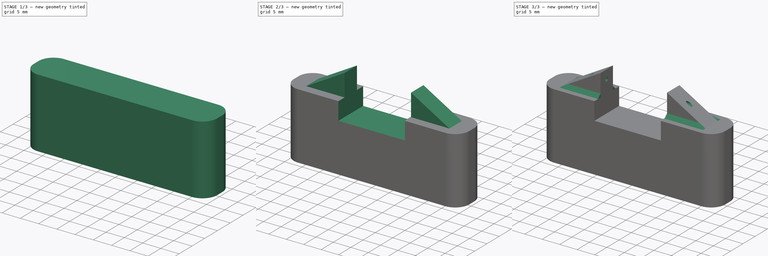
[diagram: build sequence overview — one tinted view per stage of 3, left to right]
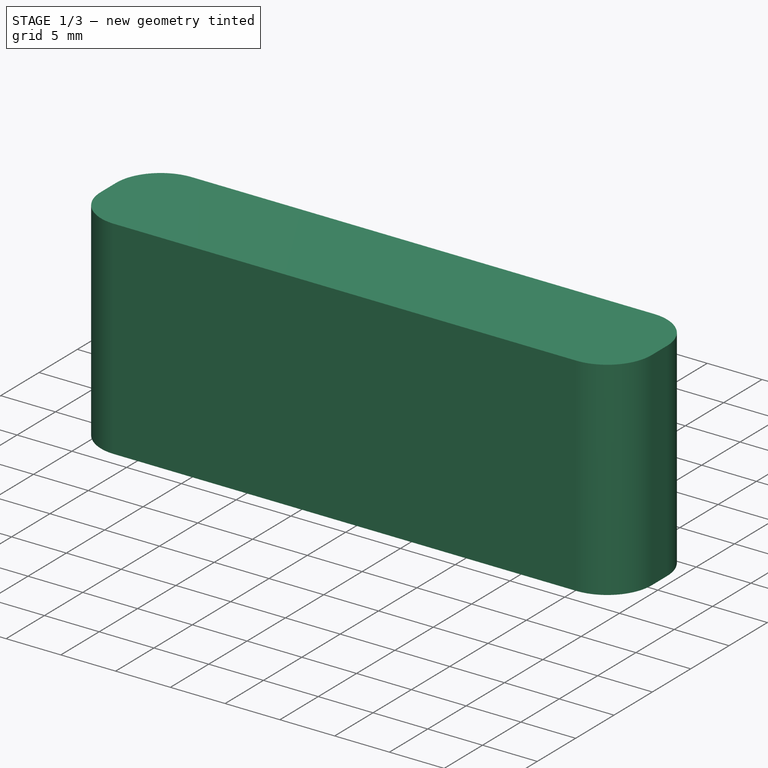
[diagram: stage 1 of 3 — iso view after this stage's code; geometry added in this stage tinted green]
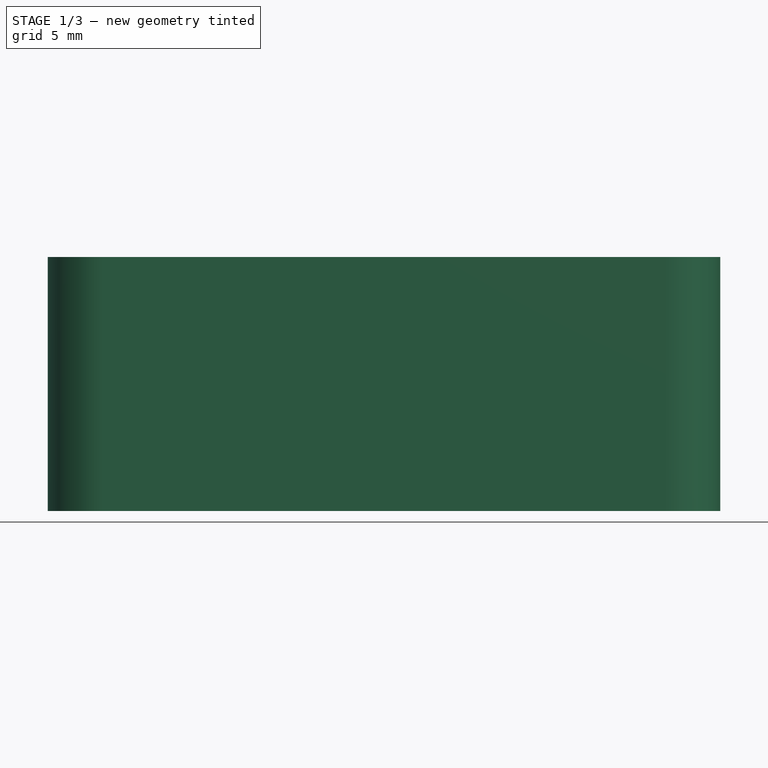
[diagram: stage 1 of 3 — front view after this stage's code; geometry added in this stage tinted green]
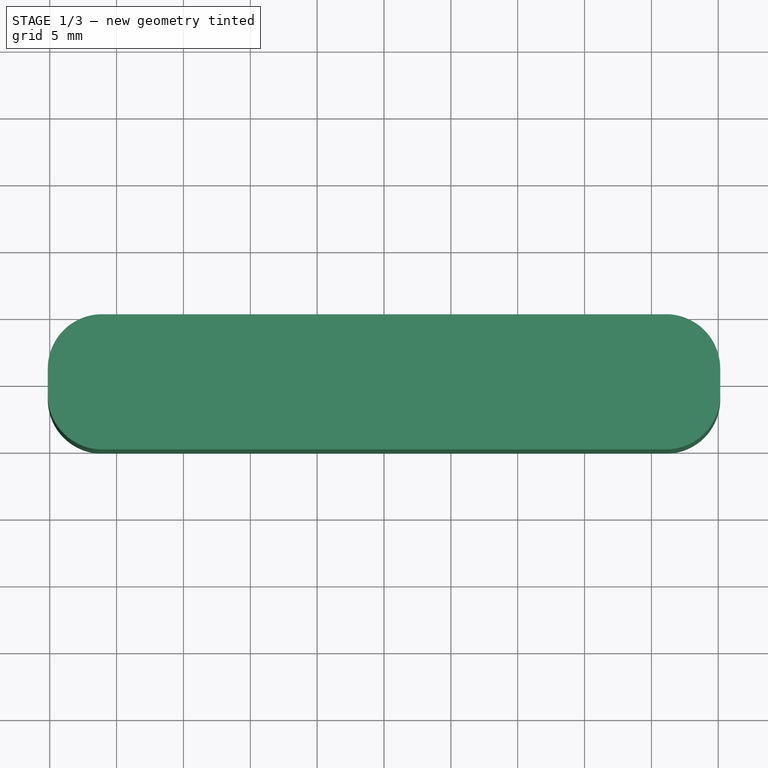
[diagram: stage 1 of 3 — top view after this stage's code; geometry added in this stage tinted green]
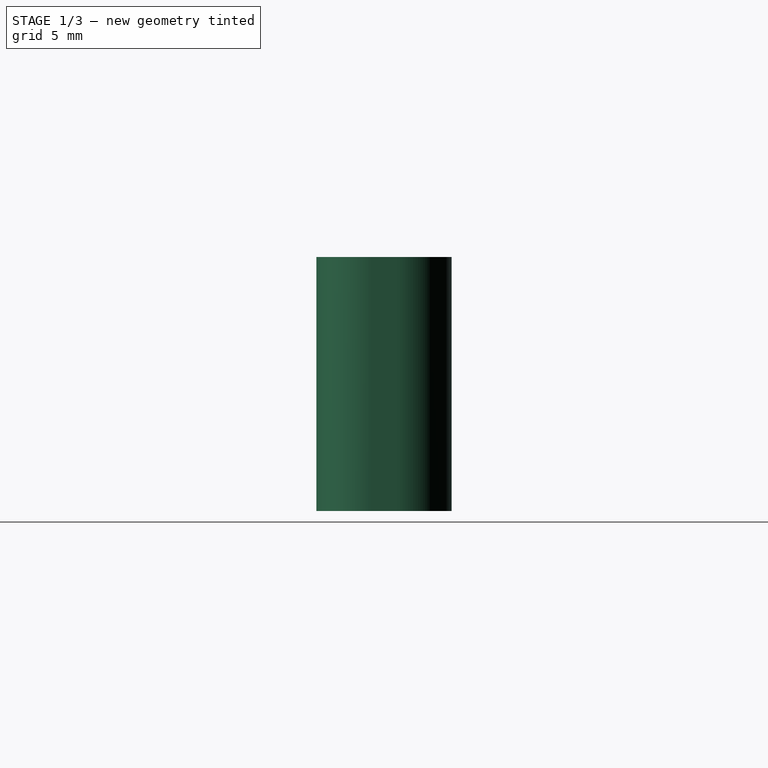
[diagram: stage 1 of 3 — right view after this stage's code; geometry added in this stage tinted green]
FCSTD DOCUMENT  (FreeCAD 0.20R27936 (Git))
Label: Idler Wheel Bracket
License: All rights reserved
LicenseURL: http://en.wikipedia.org/wiki/All_rights_reserved
objects: Sketcher::SketchObject×4, PartDesign::Pad×2, PartDesign::Pocket×2, PartDesign::Fillet×1, PartDesign::Chamfer×1, PartDesign::Body×1
note: 17 computed .brp shape members not serialized (recipe doc carries the construction recipe); baked Part::Feature solids carry a one-line shape summary decoded from their .brp

FEATURE [Sketcher::SketchObject] Sketch
  FullyConstrained = true
  MapMode = 5
  Support = -> [XY_Plane]
  sketch-geometry (4):
    g0: LineSegment StartX=-25.146 StartY=5.0546 StartZ=0 EndX=25.146 EndY=5.0546 EndZ=0
    g1: LineSegment StartX=25.146 StartY=5.0546 StartZ=0 EndX=25.146 EndY=-5.0546 EndZ=0
    g2: LineSegment StartX=25.146 StartY=-5.0546 StartZ=0 EndX=-25.146 EndY=-5.0546 EndZ=0
    g3: LineSegment StartX=-25.146 StartY=-5.0546 StartZ=0 EndX=-25.146 EndY=5.0546 EndZ=0
  constraints (11):
    c: Coincident(g0,g1)
    c: Coincident(g1,g2)
    c: Coincident(g2,g3)
    c: Coincident(g3,g0)
    c: Horizontal(g0)
    c: Horizontal(g2)
    c: Vertical(g1)
    c: Vertical(g3)
    c: Distance(g0) = 50.292
    c: Distance(g1) = 10.1092
    c: Symmetric(g0,g1,g-1)
FEATURE [PartDesign::Pad] Pad
  Direction = (0,0,1)
  Length = 18.9992
  Length2 = 10.0076
  Profile = -> Sketch
  ReferenceAxis = -> Sketch [N_Axis]
  Type = 0
FEATURE [PartDesign::Fillet] Fillet
  Base = -> Pad [Edge8,Edge5,Edge2,Edge1]
  BaseFeature = -> Pad
  Radius = 4.064
  SupportTransform = false
  UseAllEdges = false
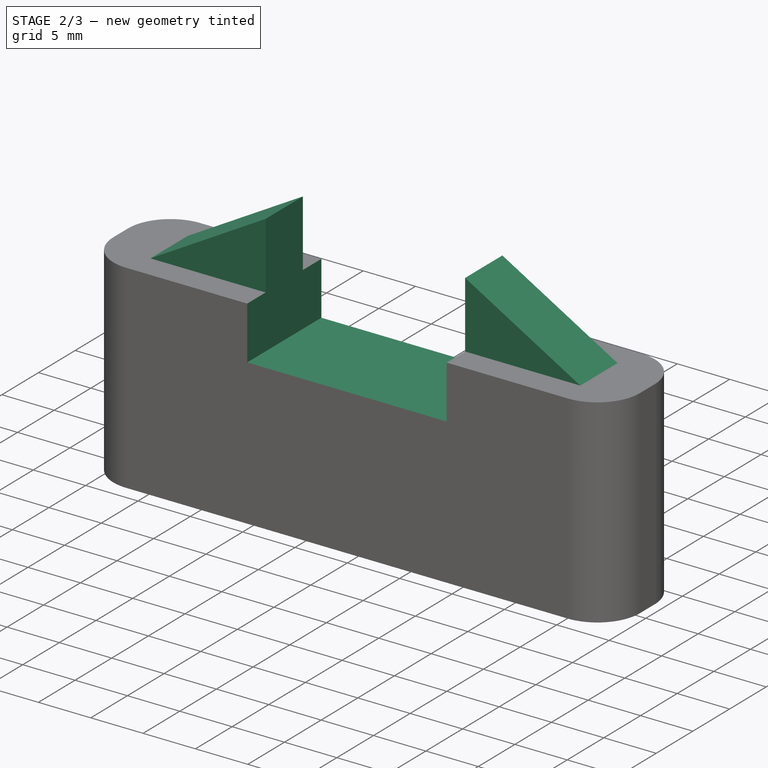
[diagram: stage 2 of 3 — iso view after this stage's code; geometry added in this stage tinted green]
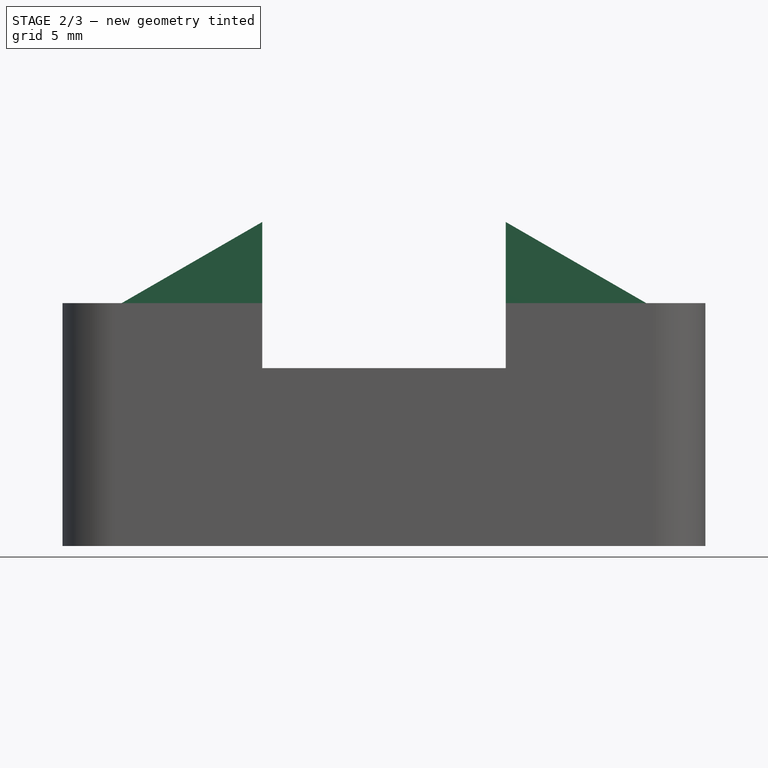
[diagram: stage 2 of 3 — front view after this stage's code; geometry added in this stage tinted green]
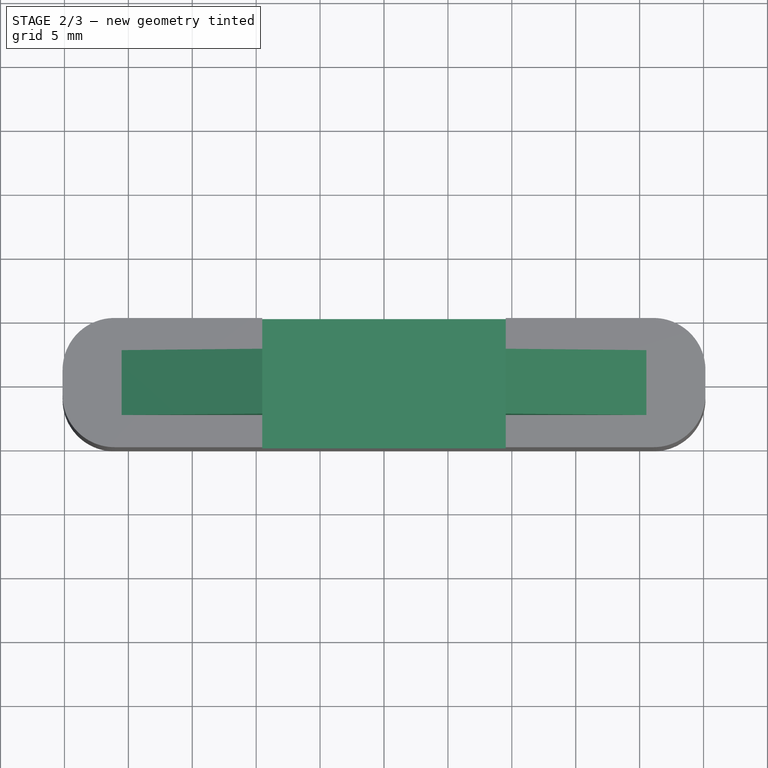
[diagram: stage 2 of 3 — top view after this stage's code; geometry added in this stage tinted green]
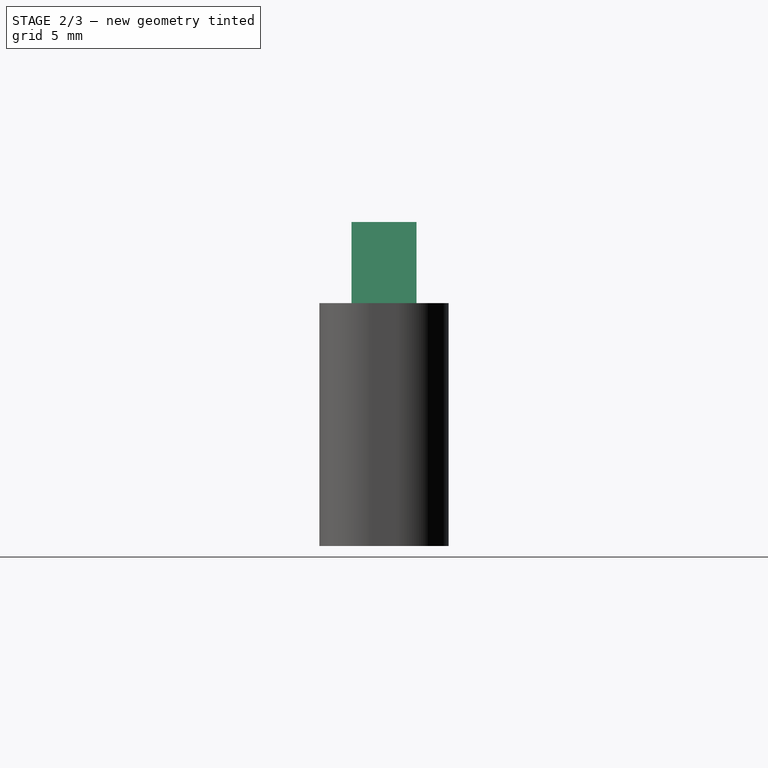
[diagram: stage 2 of 3 — right view after this stage's code; geometry added in this stage tinted green]
FEATURE [Sketcher::SketchObject] Sketch001
  ExternalGeometry = -> [Fillet]
  FullyConstrained = true
  MapMode = 5
  Placement = pos=(0,-5.0546,0) rot=(1,0,0;1.5708rad)
  Support = -> [Fillet]
  sketch-geometry (4):
    g0: LineSegment StartX=-9.525 StartY=18.9992 StartZ=0 EndX=9.525 EndY=18.9992 EndZ=0
    g1: LineSegment StartX=9.525 StartY=18.9992 StartZ=0 EndX=9.525 EndY=13.9192 EndZ=0
    g2: LineSegment StartX=9.525 StartY=13.9192 StartZ=0 EndX=-9.525 EndY=13.9192 EndZ=0
    g3: LineSegment StartX=-9.525 StartY=13.9192 StartZ=0 EndX=-9.525 EndY=18.9992 EndZ=0
  constraints (11):
    c: Coincident(g0,g1)
    c: Coincident(g1,g2)
    c: Coincident(g2,g3)
    c: Coincident(g3,g0)
    c: Horizontal(g2)
    c: Vertical(g1)
    c: Vertical(g3)
    c: Symmetric(g0,g0,g-2)
    c: Distance(g1) = 5.08
    c: Distance(g0) = 19.05
    c: PointOnObject(g0,g-3)
FEATURE [PartDesign::Pocket] Pocket
  BaseFeature = -> Fillet
  Direction = (0,1,-2e-16)
  Length = 5.0038
  Length2 = 5.0038
  Profile = -> Sketch001
  ReferenceAxis = -> Sketch001 [N_Axis]
  Type = 1
FEATURE [Sketcher::SketchObject] Sketch002
  ExternalGeometry = -> [Pocket]
  FullyConstrained = true
  MapMode = 5
  Placement = pos=(0,0,0) rot=(1,0,0;1.5708rad)
  Support = -> [XZ_Plane]
  sketch-geometry (6):
    g0: LineSegment StartX=9.525 StartY=18.9992 StartZ=0 EndX=9.525 EndY=25.3492 EndZ=0
    g1: LineSegment StartX=9.525 StartY=25.3492 StartZ=0 EndX=20.5235 EndY=18.9992 EndZ=0
    g2: LineSegment StartX=20.5235 StartY=18.9992 StartZ=0 EndX=9.525 EndY=18.9992 EndZ=0
    g3: LineSegment StartX=-9.525 StartY=18.9992 StartZ=0 EndX=-9.525 EndY=25.3492 EndZ=0
    g4: LineSegment StartX=-9.525 StartY=25.3492 StartZ=0 EndX=-20.5235 EndY=18.9992 EndZ=0
    g5: LineSegment StartX=-20.5235 StartY=18.9992 StartZ=0 EndX=-9.525 EndY=18.9992 EndZ=0
  constraints (16):
    c: Coincident(g0,g-3)
    c: Vertical(g0)
    c: Coincident(g1,g0)
    c: PointOnObject(g1,g-3)
    c: Coincident(g1,g2)
    c: Coincident(g2,g0)
    c: Coincident(g-4,g3)
    c: Vertical(g3)
    c: Coincident(g3,g4)
    c: PointOnObject(g4,g-4)
    c: Coincident(g4,g5)
    c: Coincident(g5,g3)
    c: Equal(g3,g0)
    c: Equal(g1,g4)
    c: Distance(g3) = 6.35
    c: Distance(g4) = 12.7
FEATURE [PartDesign::Pad] Pad001
  BaseFeature = -> Pocket
  Direction = (0,-1,2e-16)
  Length = 5.08
  Length2 = 10.0076
  Midplane = true
  Profile = -> Sketch002
  ReferenceAxis = -> Sketch002 [N_Axis]
  Type = 0
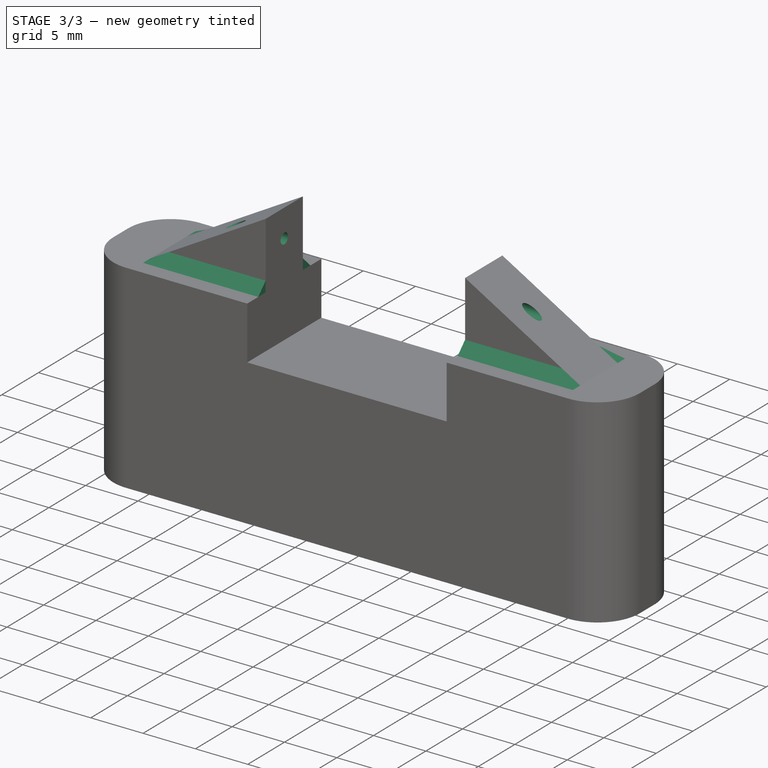
[diagram: stage 3 of 3 — iso view after this stage's code; geometry added in this stage tinted green]
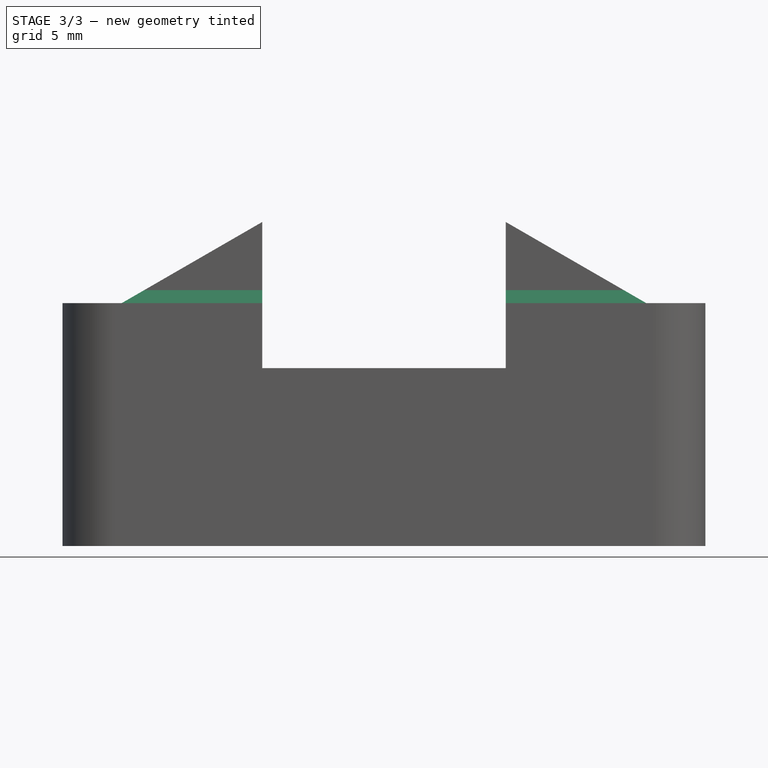
[diagram: stage 3 of 3 — front view after this stage's code; geometry added in this stage tinted green]
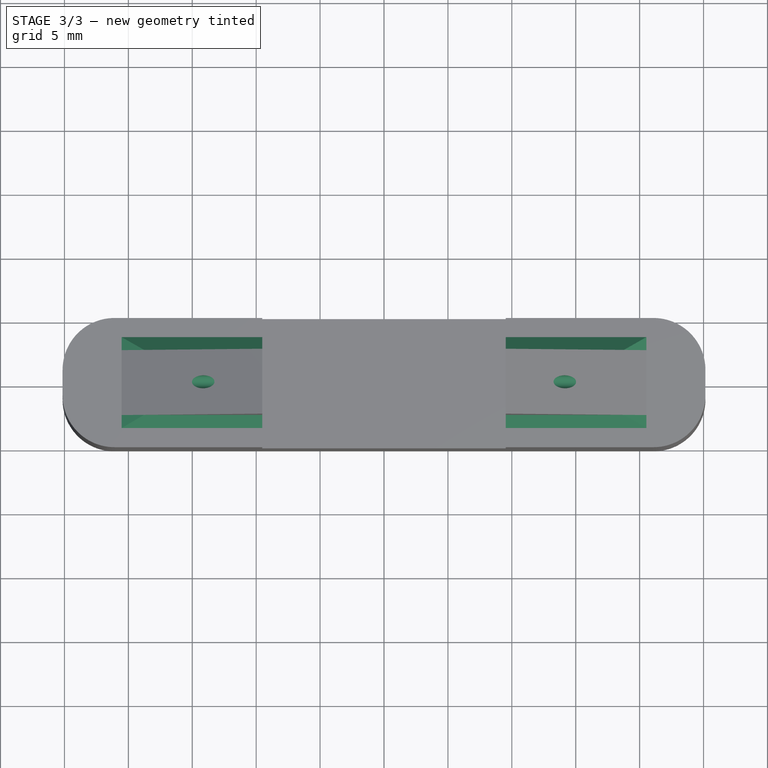
[diagram: stage 3 of 3 — top view after this stage's code; geometry added in this stage tinted green]
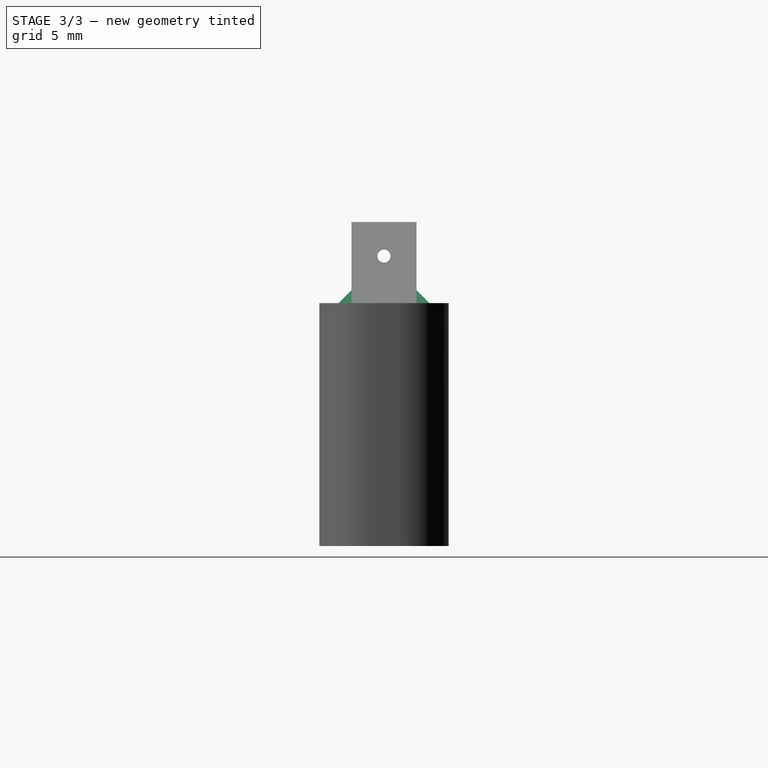
[diagram: stage 3 of 3 — right view after this stage's code; geometry added in this stage tinted green]
FEATURE [PartDesign::Chamfer] Chamfer
  Angle = 45
  Base = -> Pad001 [Edge37,Edge22,Edge35,Edge24]
  BaseFeature = -> Pad001
  ChamferType = 0
  FlipDirection = false
  Size = 1.016
  Size2 = 1
  SupportTransform = false
  UseAllEdges = false
FEATURE [Sketcher::SketchObject] Sketch003
  ExternalGeometry = -> [Chamfer]
  FullyConstrained = true
  MapMode = 5
  Placement = pos=(0,0,0) rot=(0.57735,0.57735,0.57735;2.0944rad)
  Support = -> [YZ_Plane]
  sketch-geometry (2):
    g0: Circle CenterX=0 CenterY=22.6822 CenterZ=0 NormalX=0 NormalY=0 NormalZ=1 AngleXU=0 Radius=0.508
    g1: LineSegment StartX=0 StartY=22.6822 StartZ=0 EndX=-2.54 EndY=22.6822 EndZ=0
  constraints (5):
    c: PointOnObject(g0,g-2)
    c: Coincident(g1,g0)
    c: Symmetric(g-3,g-3,g1)
    c: Diameter(g0) = 1.016
    c: Horizontal(g1)
FEATURE [PartDesign::Pocket] Pocket001
  BaseFeature = -> Chamfer
  Direction = (-1,2e-16,-3e-16)
  Length = 5.0038
  Length2 = 5.0038
  Midplane = true
  Profile = -> Sketch003
  ReferenceAxis = -> Sketch003 [N_Axis]
  Type = 1
FEATURE [PartDesign::Body] Body  label="Idler Wheel Bracket"
  Group = -> [Sketch,Pad,Fillet,Sketch001,Pocket,Sketch002,Pad001,Chamfer,Sketch003,Pocket001]
  Origin = -> Origin
  Tip = -> Pocket001
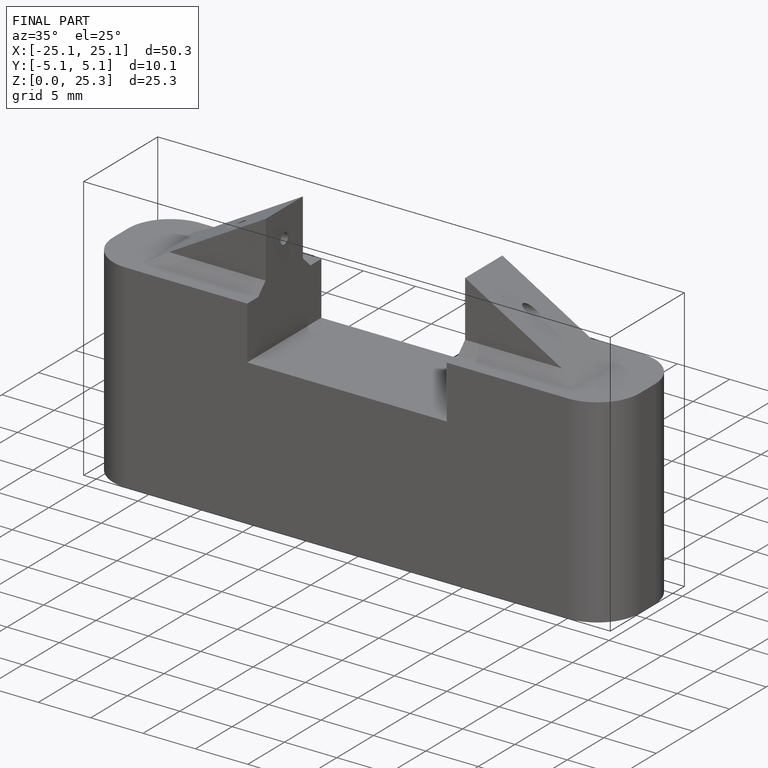
[diagram: finished part — iso view with bounding-box wireframe]
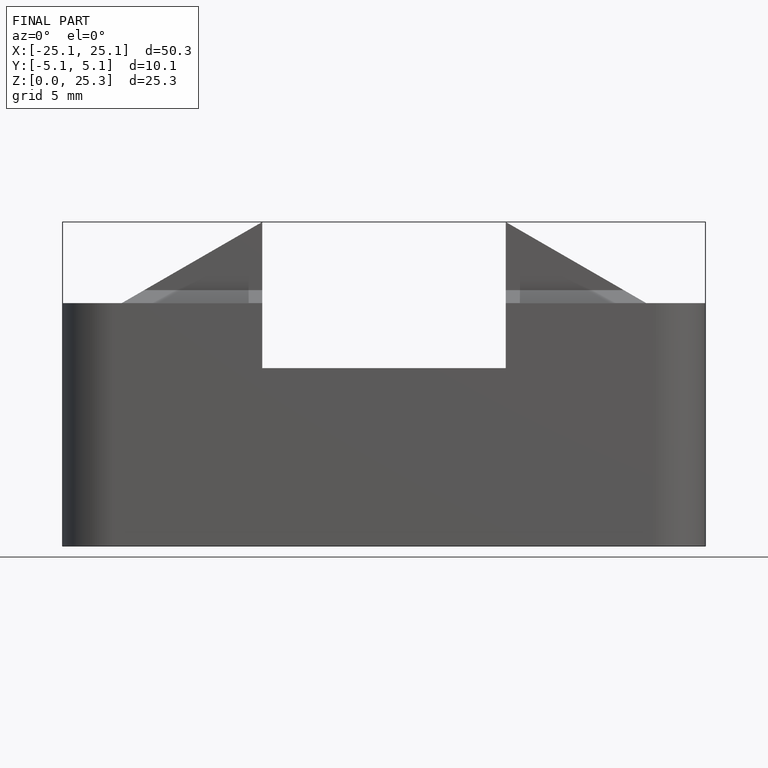
[diagram: finished part — front view with bounding-box wireframe]
